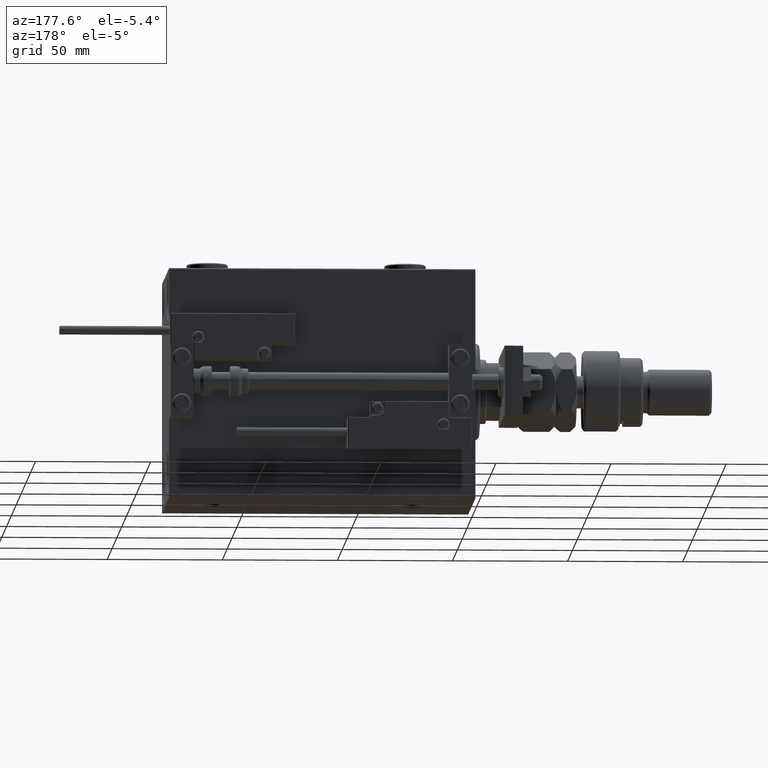
[diagram: clean part render]
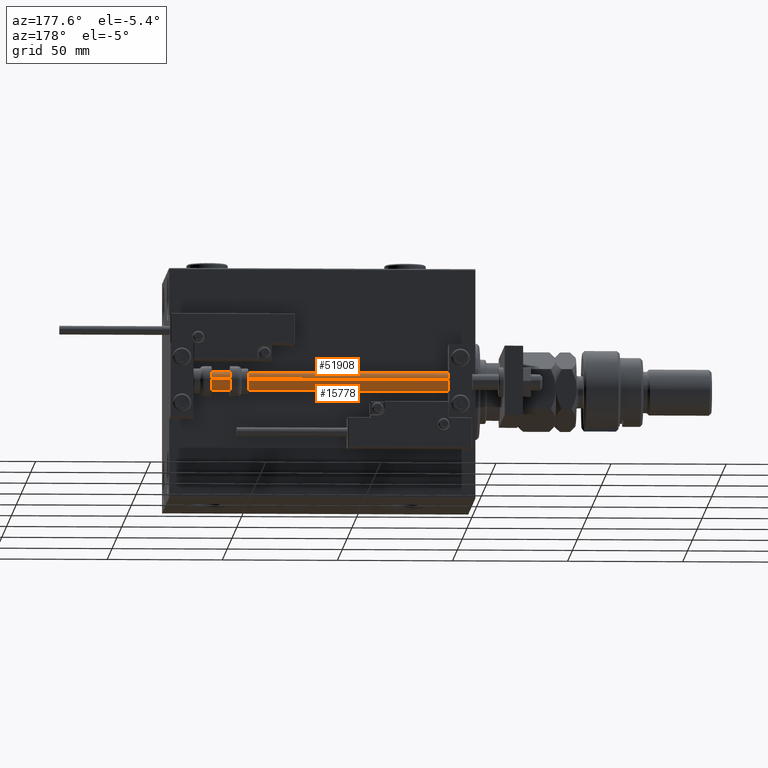
[diagram: same view with one multi-face feature highlighted, each face labeled with its STEP entity id]
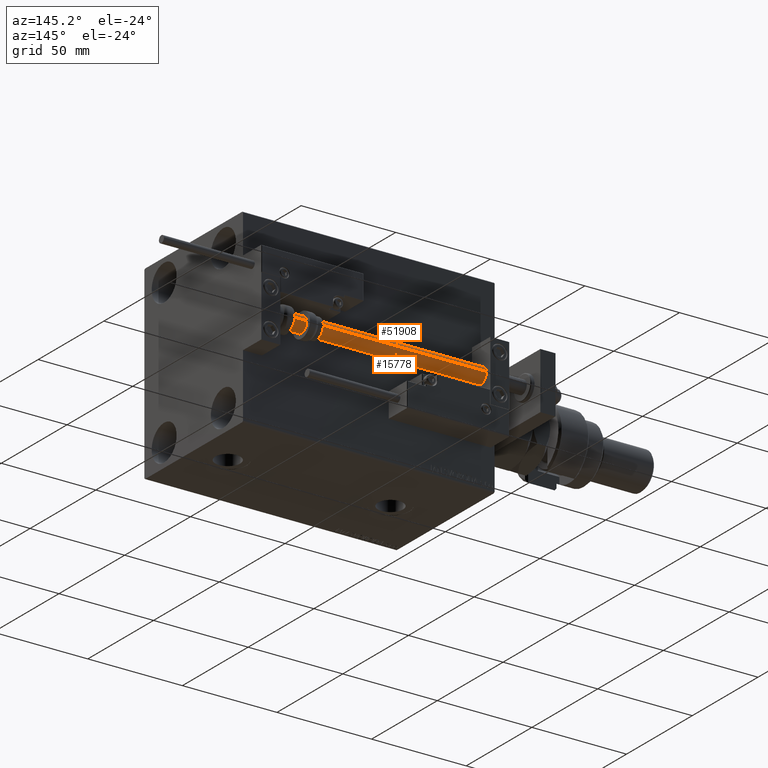
[diagram: same view with one multi-face feature highlighted, each face labeled with its STEP entity id]
A machine part, auxiliary view. The highlighted faces form ONE feature: a constant-radius fillet chain: 2 tangent blend faces with common blend radius 4 mm. The faces share edges in the B-rep.
A second angle (auxiliary view) of the same feature is appended — it is thin or edge-on in the first view.
Their STEP definitions:
[1] entity #15778 (Cylinder):
#4883 = VERTEX_POINT ( 'NONE', #18450 ) ;
#10033 = DIRECTION ( 'NONE',  ( -0.000000000000000000, -0.000000000000000000, -1.000000000000000000 ) ) ;
#10378 = VERTEX_POINT ( 'NONE', #30498 ) ;
#11855 = EDGE_LOOP ( 'NONE', ( #31562, #45149, #26913, #22039 ) ) ;
#12584 = DIRECTION ( 'NONE',  ( -0.000000000000000000, -0.000000000000000000, 1.000000000000000000 ) ) ;
#12757 = VERTEX_POINT ( 'NONE', #31493 ) ;
#13417 = CARTESIAN_POINT ( 'NONE',  ( 4.000000000000000000, 4.898587196589412829E-16, 133.0000000000000000 ) ) ;
#14246 = CARTESIAN_POINT ( 'NONE',  ( -4.000000000000000000, 0.000000000000000000, 133.0000000000000000 ) ) ;
#15778 = ADVANCED_FACE ( 'NONE', ( #45301 ), #24905, .T. ) ;
#15822 = CARTESIAN_POINT ( 'NONE',  ( 0.000000000000000000, 0.000000000000000000, 133.0000000000000000 ) ) ;
#18450 = CARTESIAN_POINT ( 'NONE',  ( -4.000000000000000000, 0.000000000000000000, 133.0000000000000000 ) ) ;
#18585 = DIRECTION ( 'NONE',  ( 1.000000000000000000, 0.000000000000000000, 0.000000000000000000 ) ) ;
#21740 = EDGE_CURVE ( 'NONE', #4883, #10378, #27741, .T. ) ;
#22039 = ORIENTED_EDGE ( 'NONE', *, *, #26250, .T. ) ;
#22964 = CIRCLE ( 'NONE', #50195, 4.000000000000000000 ) ;
#24905 = CYLINDRICAL_SURFACE ( 'NONE', #53430, 4.000000000000000000 ) ;
#25797 = DIRECTION ( 'NONE',  ( 1.000000000000000000, 0.000000000000000000, 0.000000000000000000 ) ) ;
#26250 = EDGE_CURVE ( 'NONE', #10378, #12757, #22964, .T. ) ;
#26913 = ORIENTED_EDGE ( 'NONE', *, *, #21740, .T. ) ;
#27741 = LINE ( 'NONE', #14246, #53583 ) ;
#30498 = CARTESIAN_POINT ( 'NONE',  ( -4.000000000000000000, 0.000000000000000000, 2.000000000000029310 ) ) ;
#31493 = CARTESIAN_POINT ( 'NONE',  ( 4.000000000000000000, 4.898587196589412829E-16, 2.000000000000029310 ) ) ;
#31562 = ORIENTED_EDGE ( 'NONE', *, *, #46288, .F. ) ;
#36277 = DIRECTION ( 'NONE',  ( -0.000000000000000000, -0.000000000000000000, -1.000000000000000000 ) ) ;
#36514 = AXIS2_PLACEMENT_3D ( 'NONE', #40338, #52465, #18585 ) ;
#37585 = DIRECTION ( 'NONE',  ( -0.000000000000000000, -0.000000000000000000, -1.000000000000000000 ) ) ;
#38835 = EDGE_CURVE ( 'NONE', #4883, #46914, #42694, .T. ) ;
#39806 = VECTOR ( 'NONE', #10033, 1000.000000000000000 ) ;
#40256 = LINE ( 'NONE', #47772, #39806 ) ;
#40338 = CARTESIAN_POINT ( 'NONE',  ( 0.000000000000000000, 0.000000000000000000, 133.0000000000000000 ) ) ;
#42694 = CIRCLE ( 'NONE', #36514, 4.000000000000000000 ) ;
#45149 = ORIENTED_EDGE ( 'NONE', *, *, #38835, .F. ) ;
#45301 = FACE_OUTER_BOUND ( 'NONE', #11855, .T. ) ;
#45827 = DIRECTION ( 'NONE',  ( -1.000000000000000000, 0.000000000000000000, 0.000000000000000000 ) ) ;
#46288 = EDGE_CURVE ( 'NONE', #46914, #12757, #40256, .T. ) ;
#46464 = CARTESIAN_POINT ( 'NONE',  ( 0.000000000000000000, 0.000000000000000000, 2.000000000000029310 ) ) ;
#46914 = VERTEX_POINT ( 'NONE', #13417 ) ;
#47772 = CARTESIAN_POINT ( 'NONE',  ( 4.000000000000000000, 4.898587196589412829E-16, 133.0000000000000000 ) ) ;
#50195 = AXIS2_PLACEMENT_3D ( 'NONE', #46464, #12584, #25797 ) ;
#52465 = DIRECTION ( 'NONE',  ( 0.000000000000000000, 0.000000000000000000, 1.000000000000000000 ) ) ;
#53430 = AXIS2_PLACEMENT_3D ( 'NONE', #15822, #37585, #45827 ) ;
#53583 = VECTOR ( 'NONE', #36277, 1000.000000000000000 ) ;
[2] entity #51908 (Cylinder):
#879 = DIRECTION ( 'NONE',  ( 1.000000000000000000, 0.000000000000000000, 0.000000000000000000 ) ) ;
#3026 = DIRECTION ( 'NONE',  ( -0.000000000000000000, -0.000000000000000000, 1.000000000000000000 ) ) ;
#3406 = CIRCLE ( 'NONE', #34202, 4.000000000000000000 ) ;
#4883 = VERTEX_POINT ( 'NONE', #18450 ) ;
#7146 = DIRECTION ( 'NONE',  ( 1.000000000000000000, 0.000000000000000000, 0.000000000000000000 ) ) ;
#10033 = DIRECTION ( 'NONE',  ( -0.000000000000000000, -0.000000000000000000, -1.000000000000000000 ) ) ;
#10378 = VERTEX_POINT ( 'NONE', #30498 ) ;
#12757 = VERTEX_POINT ( 'NONE', #31493 ) ;
#13290 = CARTESIAN_POINT ( 'NONE',  ( 0.000000000000000000, 0.000000000000000000, 133.0000000000000000 ) ) ;
#13417 = CARTESIAN_POINT ( 'NONE',  ( 4.000000000000000000, 4.898587196589412829E-16, 133.0000000000000000 ) ) ;
#14246 = CARTESIAN_POINT ( 'NONE',  ( -4.000000000000000000, 0.000000000000000000, 133.0000000000000000 ) ) ;
#15692 = EDGE_LOOP ( 'NONE', ( #49207, #34983, #25973, #34934 ) ) ;
#15983 = CYLINDRICAL_SURFACE ( 'NONE', #23312, 4.000000000000000000 ) ;
#18450 = CARTESIAN_POINT ( 'NONE',  ( -4.000000000000000000, 0.000000000000000000, 133.0000000000000000 ) ) ;
#18660 = EDGE_CURVE ( 'NONE', #12757, #10378, #3406, .T. ) ;
#21740 = EDGE_CURVE ( 'NONE', #4883, #10378, #27741, .T. ) ;
#23312 = AXIS2_PLACEMENT_3D ( 'NONE', #32790, #24266, #40787 ) ;
#24266 = DIRECTION ( 'NONE',  ( -0.000000000000000000, -0.000000000000000000, -1.000000000000000000 ) ) ;
#25973 = ORIENTED_EDGE ( 'NONE', *, *, #18660, .T. ) ;
#26832 = AXIS2_PLACEMENT_3D ( 'NONE', #13290, #46361, #879 ) ;
#27741 = LINE ( 'NONE', #14246, #53583 ) ;
#30498 = CARTESIAN_POINT ( 'NONE',  ( -4.000000000000000000, 0.000000000000000000, 2.000000000000029310 ) ) ;
#31493 = CARTESIAN_POINT ( 'NONE',  ( 4.000000000000000000, 4.898587196589412829E-16, 2.000000000000029310 ) ) ;
#32151 = CIRCLE ( 'NONE', #26832, 4.000000000000000000 ) ;
#32790 = CARTESIAN_POINT ( 'NONE',  ( 0.000000000000000000, 0.000000000000000000, 133.0000000000000000 ) ) ;
#34202 = AXIS2_PLACEMENT_3D ( 'NONE', #49050, #3026, #7146 ) ;
#34934 = ORIENTED_EDGE ( 'NONE', *, *, #21740, .F. ) ;
#34983 = ORIENTED_EDGE ( 'NONE', *, *, #46288, .T. ) ;
#36277 = DIRECTION ( 'NONE',  ( -0.000000000000000000, -0.000000000000000000, -1.000000000000000000 ) ) ;
#36657 = FACE_OUTER_BOUND ( 'NONE', #15692, .T. ) ;
#38985 = EDGE_CURVE ( 'NONE', #46914, #4883, #32151, .T. ) ;
#39806 = VECTOR ( 'NONE', #10033, 1000.000000000000000 ) ;
#40256 = LINE ( 'NONE', #47772, #39806 ) ;
#40787 = DIRECTION ( 'NONE',  ( -1.000000000000000000, 0.000000000000000000, 0.000000000000000000 ) ) ;
#46288 = EDGE_CURVE ( 'NONE', #46914, #12757, #40256, .T. ) ;
#46361 = DIRECTION ( 'NONE',  ( 0.000000000000000000, 0.000000000000000000, 1.000000000000000000 ) ) ;
#46914 = VERTEX_POINT ( 'NONE', #13417 ) ;
#47772 = CARTESIAN_POINT ( 'NONE',  ( 4.000000000000000000, 4.898587196589412829E-16, 133.0000000000000000 ) ) ;
#49050 = CARTESIAN_POINT ( 'NONE',  ( 0.000000000000000000, 0.000000000000000000, 2.000000000000029310 ) ) ;
#49207 = ORIENTED_EDGE ( 'NONE', *, *, #38985, .F. ) ;
#51908 = ADVANCED_FACE ( 'NONE', ( #36657 ), #15983, .T. ) ;
#53583 = VECTOR ( 'NONE', #36277, 1000.000000000000000 ) ;